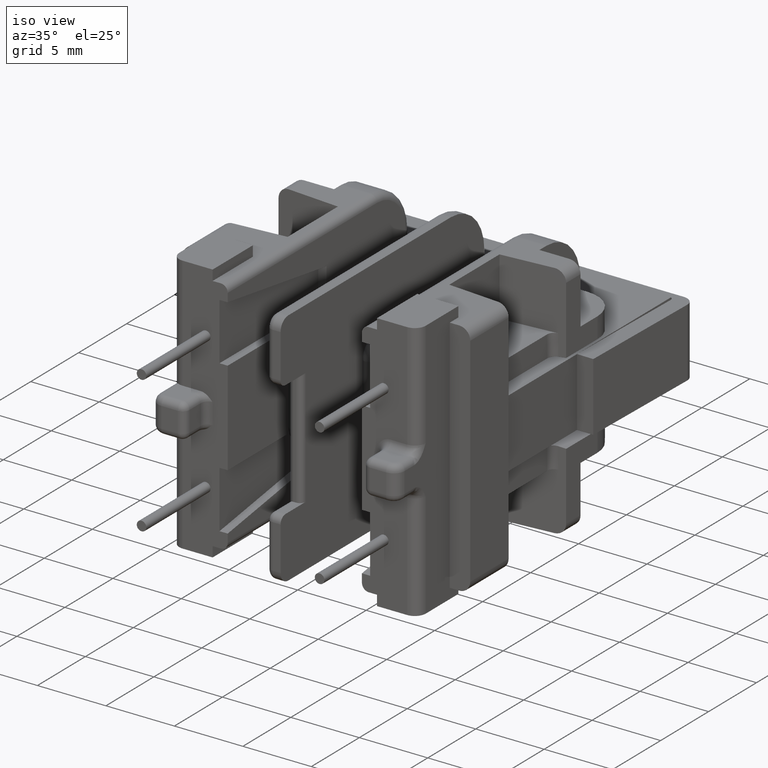
[diagram: clean part render]
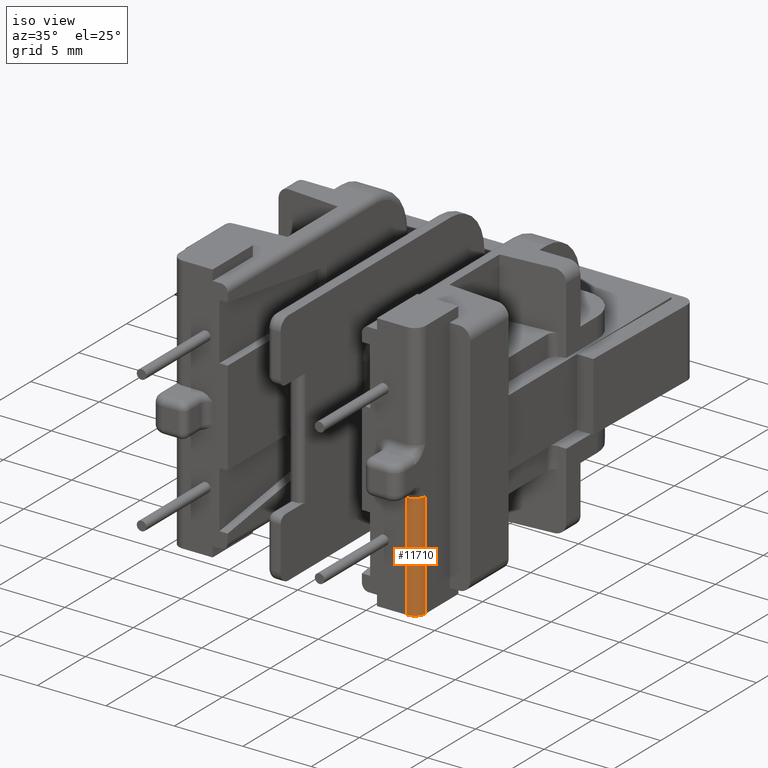
[diagram: same view with one face highlighted and labeled with its STEP entity id]
A machine part, iso view. The second image highlights one B-rep face of the part: STEP entity #11710.
In plain terms, the highlighted cylindrical surface (edge-blend (fillet) strip) has radius 0.8 mm, axis along (0, 0, 1).
Its self-contained STEP definition (entity closure, byte-faithful):
#220 = DIRECTION ( 'NONE',  ( 1.000000000000000000, 0.0000000000000000000, 0.0000000000000000000 ) ) ;
#328 = VERTEX_POINT ( 'NONE', #16800 ) ;
#556 = VERTEX_POINT ( 'NONE', #6858 ) ;
#645 = VERTEX_POINT ( 'NONE', #17302 ) ;
#1441 = DIRECTION ( 'NONE',  ( 0.0000000000000000000, 0.0000000000000000000, 1.000000000000000000 ) ) ;
#2384 = CARTESIAN_POINT ( 'NONE',  ( 9.000000000000007105, -9.500000000000001776, -8.750000000000000000 ) ) ;
#2618 = VERTEX_POINT ( 'NONE', #20643 ) ;
#3034 = DIRECTION ( 'NONE',  ( 1.000000000000000000, 0.0000000000000000000, 0.0000000000000000000 ) ) ;
#4453 = CIRCLE ( 'NONE', #18940, 0.8000000000000003775 ) ;
#5149 = AXIS2_PLACEMENT_3D ( 'NONE', #5536, #18188, #220 ) ;
#5536 = CARTESIAN_POINT ( 'NONE',  ( 8.200000000000008171, -9.500000000000001776, 8.750000000000000000 ) ) ;
#5605 = CARTESIAN_POINT ( 'NONE',  ( 8.200000000000008171, -9.500000000000001776, -9.500000000000001776 ) ) ;
#5689 = DIRECTION ( 'NONE',  ( 0.0000000000000000000, -0.0000000000000000000, -1.000000000000000000 ) ) ;
#5802 = LINE ( 'NONE', #23217, #21360 ) ;
#6169 = EDGE_CURVE ( 'NONE', #645, #2618, #4453, .T. ) ;
#6201 = CYLINDRICAL_SURFACE ( 'NONE', #5149, 0.8000000000000003775 ) ;
#6858 = CARTESIAN_POINT ( 'NONE',  ( 9.000000000000007105, -9.500000000000001776, -9.500000000000000000 ) ) ;
#7388 = EDGE_CURVE ( 'NONE', #556, #328, #13396, .T. ) ;
#7464 = DIRECTION ( 'NONE',  ( -0.0000000000000000000, -0.0000000000000000000, -1.000000000000000000 ) ) ;
#7890 = LINE ( 'NONE', #2384, #21766 ) ;
#11710 = ADVANCED_FACE ( 'NONE', ( #23157 ), #6201, .T. ) ;
#11805 = ORIENTED_EDGE ( 'NONE', *, *, #7388, .F. ) ;
#12223 = ORIENTED_EDGE ( 'NONE', *, *, #20470, .F. ) ;
#13396 = CIRCLE ( 'NONE', #21685, 0.8000000000000003775 ) ;
#13432 = DIRECTION ( 'NONE',  ( 1.000000000000000000, 0.0000000000000000000, 0.0000000000000000000 ) ) ;
#15395 = EDGE_CURVE ( 'NONE', #645, #556, #7890, .T. ) ;
#16800 = CARTESIAN_POINT ( 'NONE',  ( 8.200000000000008171, -10.30000000000000249, -9.500000000000001776 ) ) ;
#17302 = CARTESIAN_POINT ( 'NONE',  ( 9.000000000000007105, -9.500000000000001776, -1.749999999999999778 ) ) ;
#18188 = DIRECTION ( 'NONE',  ( 0.0000000000000000000, 0.0000000000000000000, 1.000000000000000000 ) ) ;
#18197 = EDGE_LOOP ( 'NONE', ( #22149, #23077, #12223, #11805 ) ) ;
#18940 = AXIS2_PLACEMENT_3D ( 'NONE', #19126, #19443, #3034 ) ;
#19126 = CARTESIAN_POINT ( 'NONE',  ( 8.200000000000008171, -9.500000000000001776, -1.749999999999999778 ) ) ;
#19443 = DIRECTION ( 'NONE',  ( -0.0000000000000000000, 0.0000000000000000000, -1.000000000000000000 ) ) ;
#20470 = EDGE_CURVE ( 'NONE', #328, #2618, #5802, .T. ) ;
#20643 = CARTESIAN_POINT ( 'NONE',  ( 8.200000000000008171, -10.30000000000000249, -1.749999999999999778 ) ) ;
#21360 = VECTOR ( 'NONE', #1441, 1000.000000000000000 ) ;
#21685 = AXIS2_PLACEMENT_3D ( 'NONE', #5605, #5689, #13432 ) ;
#21766 = VECTOR ( 'NONE', #7464, 1000.000000000000000 ) ;
#22149 = ORIENTED_EDGE ( 'NONE', *, *, #15395, .F. ) ;
#23077 = ORIENTED_EDGE ( 'NONE', *, *, #6169, .T. ) ;
#23157 = FACE_OUTER_BOUND ( 'NONE', #18197, .T. ) ;
#23217 = CARTESIAN_POINT ( 'NONE',  ( 8.200000000000008171, -10.30000000000000249, 8.750000000000000000 ) ) ;